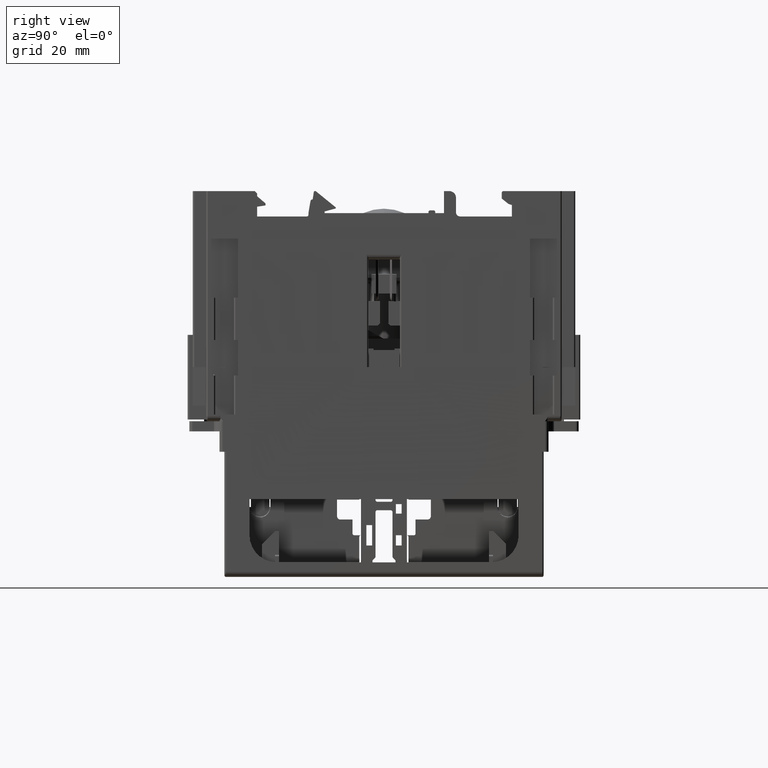
[diagram: clean part render]
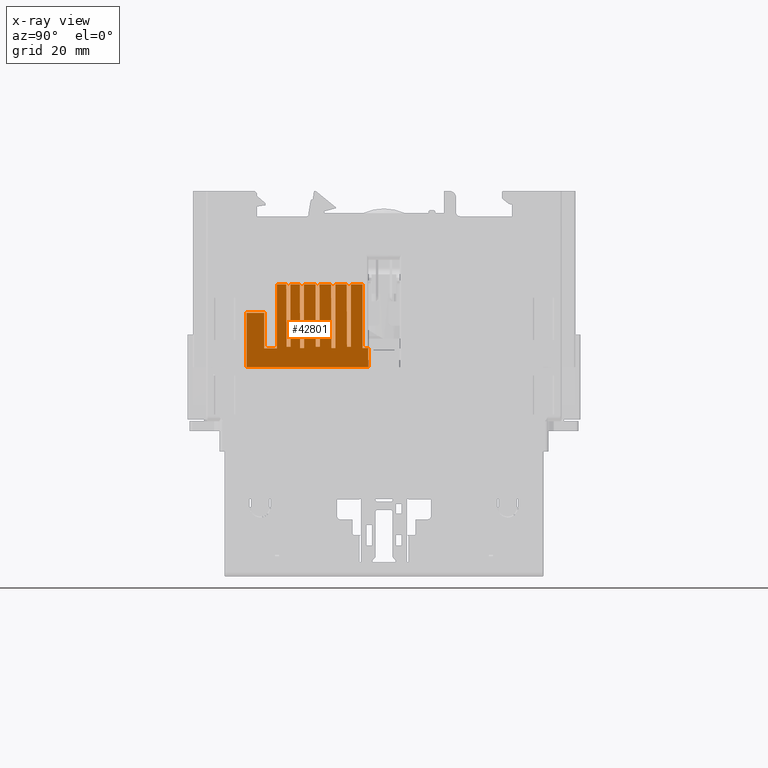
[diagram: x-ray — body ghosted, one internal face saturated and labeled with its STEP entity id]
A machine part, right view, then the same camera in x-ray: the body is ghosted and one INTERNAL B-rep face — a face not visible from any outside direction — is saturated and labeled: STEP entity #42801.
In plain terms, the highlighted planar face has unit normal (1, 0, 0).
Its self-contained STEP definition (entity closure, byte-faithful):
#23143=DIRECTION('',(6.053759617570E-8,1.075964707978E-12,-1.E0));
#23144=VECTOR('',#23143,5.600000032127E0);
#23145=CARTESIAN_POINT('',(2.217255198439E2,4.099300676877E2,1.460960762782E2));
#23146=LINE('',#23145,#23144);
#23882=CARTESIAN_POINT('',(2.217259897887E2,3.829806536404E2,1.648960648971E2));
#23919=DIRECTION('',(5.593291574024E-8,3.735052143635E-3,-9.999930246684E-1));
#23920=VECTOR('',#23919,1.840012847930E1);
#23921=CARTESIAN_POINT('',(2.217259189175E2,3.869119282035E2,1.648960763993E2));
#23922=LINE('',#23921,#23920);
#23923=DIRECTION('',(1.744056726206E-5,-9.999999998479E-1,-4.736951575507E-14));
#23924=VECTOR('',#23923,1.199999999044E0);
#23925=CARTESIAN_POINT('',(2.217259199467E2,3.869806536428E2,1.464960762670E2));
#23926=LINE('',#23925,#23924);
#23927=DIRECTION('',(-5.593291574028E-8,-3.735052147787E-3,9.999930246684E-1));
#23928=VECTOR('',#23927,1.840012847929E1);
#23929=CARTESIAN_POINT('',(2.217259408754E2,3.857806536440E2,1.464960762670E2));
#23930=LINE('',#23929,#23928);
#23931=DIRECTION('',(1.828542755715E-5,-9.999999998240E-1,-4.211296921988E-6));
#23932=VECTOR('',#23931,2.731274564660E0);
#23933=CARTESIAN_POINT('',(2.217259398462E2,3.857119282046E2,1.648960763993E2));
#23934=LINE('',#23933,#23932);
#23935=DIRECTION('',(7.043611689288E-7,5.549124057681E-9,-9.999999999998E-1));
#23936=VECTOR('',#23935,1.889998861889E1);
#23937=CARTESIAN_POINT('',(2.217259897887E2,3.829806536404E2,1.648960648971E2));
#23938=LINE('',#23937,#23936);
#23939=DIRECTION('',(1.016834451892E-5,-9.999999999483E-1,-2.991780072624E-14));
#23940=VECTOR('',#23939,3.799973091669E0);
#23941=CARTESIAN_POINT('',(2.217260031012E2,3.829806537453E2,1.459960762782E2));
#23942=LINE('',#23941,#23940);
#23943=DIRECTION('',(1.241107716913E-6,-1.715144787250E-6,9.999999999978E-1));
#23944=VECTOR('',#23943,1.050000000002E1);
#23945=CARTESIAN_POINT('',(2.217260417406E2,3.791806806538E2,1.459960762782E2));
#23946=LINE('',#23945,#23944);
#23947=DIRECTION('',(1.744056725845E-5,-9.999999998479E-1,-2.730000099677E-14));
#23948=VECTOR('',#23947,5.205441097559E0);
#23949=CARTESIAN_POINT('',(2.217260547722E2,3.791806626448E2,1.564960762782E2));
#23950=LINE('',#23949,#23948);
#23951=DIRECTION('',(1.210751872094E-7,2.142286348317E-12,-1.E0));
#23952=VECTOR('',#23951,1.6E1);
#23953=CARTESIAN_POINT('',(2.217261455581E2,3.739752215480E2,1.564960762782E2));
#23954=LINE('',#23953,#23952);
#23955=DIRECTION('',(-1.744722604498E-5,9.999999998478E-1,-8.935102761296E-10));
#23956=VECTOR('',#23955,3.595484614510E1);
#23957=CARTESIAN_POINT('',(2.217261474953E2,3.739752215480E2,1.404960762782E2));
#23958=LINE('',#23957,#23956);
#23959=DIRECTION('',(1.701684796158E-5,-9.999999998552E-1,0.E0));
#23960=VECTOR('',#23959,1.700000144005E0);
#23961=CARTESIAN_POINT('',(2.217255198439E2,4.099300676877E2,1.460960762782E2));
#23962=LINE('',#23961,#23960);
#23963=DIRECTION('',(-6.053759384446E-8,-1.070349479359E-12,1.E0));
#23964=VECTOR('',#23963,1.880000006052E1);
#23965=CARTESIAN_POINT('',(2.217255487726E2,4.082300675439E2,1.460960762782E2));
#23966=LINE('',#23965,#23964);
#23967=DIRECTION('',(1.729141751913E-5,-9.999999998505E-1,8.720416472653E-9));
#23968=VECTOR('',#23967,3.468853892386E0);
#23969=CARTESIAN_POINT('',(2.217255476345E2,4.082300675439E2,1.648960763387E2));
#23970=LINE('',#23969,#23968);
#23971=DIRECTION('',(5.593291428779E-8,3.735052198779E-3,-9.999930246682E-1));
#23972=VECTOR('',#23971,1.840012844897E1);
#23973=CARTESIAN_POINT('',(2.217256076159E2,4.047612136520E2,1.648960763690E2));
#23974=LINE('',#23973,#23972);
#23975=DIRECTION('',(1.744056724442E-5,-9.999999998479E-1,-2.368475785357E-14));
#23976=VECTOR('',#23975,1.200000000258E0);
#23977=CARTESIAN_POINT('',(2.217256086450E2,4.048299390922E2,1.464960762670E2));
#23978=LINE('',#23977,#23976);
#23979=DIRECTION('',(-5.593291530769E-8,-3.735052147867E-3,9.999930246684E-1));
#23980=VECTOR('',#23979,1.840345490111E1);
#23981=CARTESIAN_POINT('',(2.217256295737E2,4.036299390922E2,1.464960762670E2));
#23982=LINE('',#23981,#23980);
#23983=DIRECTION('',(1.744056725828E-5,-9.999999998479E-1,-3.342261860017E-14));
#23984=VECTOR('',#23983,3.401494032579E0);
#23985=CARTESIAN_POINT('',(2.217256285444E2,4.035612012284E2,1.648994027979E2));
#23986=LINE('',#23985,#23984);
#23987=DIRECTION('',(5.593291335388E-8,3.735052272143E-3,-9.999930246679E-1));
#23988=VECTOR('',#23987,1.880345769127E1);
#23989=CARTESIAN_POINT('',(2.217256878684E2,4.001597071963E2,1.648994027979E2));
#23990=LINE('',#23989,#23988);
#23991=DIRECTION('',(1.744056724325E-5,-9.999999998479E-1,-4.736951570397E-14));
#23992=VECTOR('',#23991,1.200000000339E0);
#23993=CARTESIAN_POINT('',(2.217256889201E2,4.002299390937E2,1.460960762670E2));
#23994=LINE('',#23993,#23992);
#23995=DIRECTION('',(-5.593291528871E-8,-3.735052147788E-3,9.999930246684E-1));
#23996=VECTOR('',#23995,1.880013126945E1);
#23997=CARTESIAN_POINT('',(2.217257098488E2,3.990299390936E2,1.460960762670E2));
#23998=LINE('',#23997,#23996);
#23999=DIRECTION('',(1.744056725507E-5,-9.999999998479E-1,-3.321120219893E-14));
#24000=VECTOR('',#23999,3.423147317602E0);
#24001=CARTESIAN_POINT('',(2.217257087972E2,3.989597196229E2,1.648960763993E2));
#24002=LINE('',#24001,#24000);
#24003=DIRECTION('',(5.593291574027E-8,3.735052143134E-3,-9.999930246684E-1));
#24004=VECTOR('',#24003,1.840012847929E1);
#24005=CARTESIAN_POINT('',(2.217257684989E2,3.955365723058E2,1.648960763993E2));
#24006=LINE('',#24005,#24004);
#24007=DIRECTION('',(1.744056724476E-5,-9.999999998479E-1,-2.368475785404E-14));
#24008=VECTOR('',#24007,1.200000000235E0);
#24009=CARTESIAN_POINT('',(2.217257695280E2,3.956052977451E2,1.464960762670E2));
#24010=LINE('',#24009,#24008);
#24011=DIRECTION('',(-5.593291419561E-8,-3.735052147792E-3,9.999930246684E-1));
#24012=VECTOR('',#24011,1.840012847930E1);
#24013=CARTESIAN_POINT('',(2.217257904567E2,3.944052977451E2,1.464960762670E2));
#24014=LINE('',#24013,#24012);
#24015=DIRECTION('',(1.744056725460E-5,-9.999999998479E-1,-3.318221076016E-14));
#24016=VECTOR('',#24015,3.426138135983E0);
#24017=CARTESIAN_POINT('',(2.217257894275E2,3.943365723057E2,1.648960763993E2));
#24018=LINE('',#24017,#24016);
#24019=DIRECTION('',(5.593291831204E-8,3.735051971090E-3,-9.999930246691E-1));
#24020=VECTOR('',#24019,1.880013126953E1);
#24021=CARTESIAN_POINT('',(2.217258491813E2,3.909104341702E2,1.648960763993E2));
#24022=LINE('',#24021,#24020);
#24023=DIRECTION('',(1.744056725010E-5,-9.999999998479E-1,-2.368475795778E-14));
#24024=VECTOR('',#24023,1.199999994979E0);
#24025=CARTESIAN_POINT('',(2.217258502329E2,3.909806536376E2,1.460960762669E2));
#24026=LINE('',#24025,#24024);
#24027=DIRECTION('',(-5.593291528841E-8,-3.735052147777E-3,9.999930246684E-1));
#24028=VECTOR('',#24027,1.880013126955E1);
#24029=CARTESIAN_POINT('',(2.217258711616E2,3.897806536428E2,1.460960762669E2));
#24030=LINE('',#24029,#24028);
#24031=DIRECTION('',(1.744056725139E-5,-9.999999998479E-1,-3.046808877147E-14));
#24032=VECTOR('',#24031,2.798505969007E0);
#24033=CARTESIAN_POINT('',(2.217258701100E2,3.897104341721E2,1.648960763993E2));
#24034=LINE('',#24033,#24032);
#37571=CARTESIAN_POINT('',(2.217255476345E2,4.082300675439E2,1.648960763387E2));
#37572=VERTEX_POINT('',#37571);
#37573=CARTESIAN_POINT('',(2.217255487726E2,4.082300675439E2,1.460960762782E2));
#37575=VERTEX_POINT('',#37573);
#40003=CARTESIAN_POINT('',(2.217260417406E2,3.791806806538E2,1.459960762782E2));
#40004=VERTEX_POINT('',#40003);
#40007=VERTEX_POINT('',#23882);
#40057=CARTESIAN_POINT('',(2.217259189175E2,3.869119282035E2,1.648960763993E2));
#40058=CARTESIAN_POINT('',(2.217259199467E2,3.869806536428E2,1.464960762670E2));
#40059=VERTEX_POINT('',#40057);
#40060=VERTEX_POINT('',#40058);
#40061=CARTESIAN_POINT('',(2.217259408754E2,3.857806536440E2,1.464960762670E2));
#40062=VERTEX_POINT('',#40061);
#40063=CARTESIAN_POINT('',(2.217259398462E2,3.857119282046E2,1.648960763993E2));
#40064=VERTEX_POINT('',#40063);
#40065=CARTESIAN_POINT('',(2.217260547722E2,3.791806626448E2,1.564960762782E2));
#40066=VERTEX_POINT('',#40065);
#40067=CARTESIAN_POINT('',(2.217261455581E2,3.739752215480E2,1.564960762782E2));
#40068=VERTEX_POINT('',#40067);
#40069=CARTESIAN_POINT('',(2.217261474953E2,3.739752215480E2,1.404960762782E2));
#40070=VERTEX_POINT('',#40069);
#40071=CARTESIAN_POINT('',(2.217255201829E2,4.099300676877E2,1.404960762461E2));
#40072=VERTEX_POINT('',#40071);
#40073=CARTESIAN_POINT('',(2.217255198439E2,4.099300676877E2,1.460960762782E2));
#40074=VERTEX_POINT('',#40073);
#40075=CARTESIAN_POINT('',(2.217256076159E2,4.047612136520E2,1.648960763690E2));
#40076=VERTEX_POINT('',#40075);
#40077=CARTESIAN_POINT('',(2.217256086450E2,4.048299390922E2,1.464960762670E2));
#40078=VERTEX_POINT('',#40077);
#40079=CARTESIAN_POINT('',(2.217256295737E2,4.036299390922E2,1.464960762670E2));
#40080=VERTEX_POINT('',#40079);
#40081=CARTESIAN_POINT('',(2.217256285444E2,4.035612012284E2,1.648994027979E2));
#40082=VERTEX_POINT('',#40081);
#40083=CARTESIAN_POINT('',(2.217256878684E2,4.001597071963E2,1.648994027979E2));
#40084=VERTEX_POINT('',#40083);
#40085=CARTESIAN_POINT('',(2.217256889201E2,4.002299390937E2,1.460960762670E2));
#40086=VERTEX_POINT('',#40085);
#40087=CARTESIAN_POINT('',(2.217257098488E2,3.990299390936E2,1.460960762670E2));
#40088=VERTEX_POINT('',#40087);
#40089=CARTESIAN_POINT('',(2.217257087972E2,3.989597196229E2,1.648960763993E2));
#40090=VERTEX_POINT('',#40089);
#40091=CARTESIAN_POINT('',(2.217257684989E2,3.955365723058E2,1.648960763993E2));
#40092=VERTEX_POINT('',#40091);
#40093=CARTESIAN_POINT('',(2.217257695280E2,3.956052977451E2,1.464960762670E2));
#40094=VERTEX_POINT('',#40093);
#40095=CARTESIAN_POINT('',(2.217257904567E2,3.944052977451E2,1.464960762670E2));
#40096=VERTEX_POINT('',#40095);
#40097=CARTESIAN_POINT('',(2.217257894275E2,3.943365723057E2,1.648960763993E2));
#40098=VERTEX_POINT('',#40097);
#40099=CARTESIAN_POINT('',(2.217258491813E2,3.909104341702E2,1.648960763993E2));
#40100=VERTEX_POINT('',#40099);
#40101=CARTESIAN_POINT('',(2.217258502329E2,3.909806536376E2,1.460960762669E2));
#40102=VERTEX_POINT('',#40101);
#40103=CARTESIAN_POINT('',(2.217258711616E2,3.897806536428E2,1.460960762669E2));
#40104=VERTEX_POINT('',#40103);
#40105=CARTESIAN_POINT('',(2.217258701100E2,3.897104341721E2,1.648960763993E2));
#40106=VERTEX_POINT('',#40105);
#41749=CARTESIAN_POINT('',(2.217260031012E2,3.829806537453E2,1.459960762782E2));
#41750=VERTEX_POINT('',#41749);
#42736=CARTESIAN_POINT('',(2.217258324813E2,3.919526446180E2,1.526994027374E2));
#42737=DIRECTION('',(9.999999998479E-1,1.744056725456E-5,1.210751882587E-7));
#42738=DIRECTION('',(1.744056725456E-5,-9.999999998479E-1,-3.091759724805E-14));
#42739=AXIS2_PLACEMENT_3D('',#42736,#42737,#42738);
#42740=PLANE('',#42739);
#42742=ORIENTED_EDGE('',*,*,#42741,.T.);
#42744=ORIENTED_EDGE('',*,*,#42743,.T.);
#42746=ORIENTED_EDGE('',*,*,#42745,.T.);
#42748=ORIENTED_EDGE('',*,*,#42747,.T.);
#42749=ORIENTED_EDGE('',*,*,#42718,.T.);
#42751=ORIENTED_EDGE('',*,*,#42750,.T.);
#42753=ORIENTED_EDGE('',*,*,#42752,.T.);
#42755=ORIENTED_EDGE('',*,*,#42754,.T.);
#42757=ORIENTED_EDGE('',*,*,#42756,.T.);
#42759=ORIENTED_EDGE('',*,*,#42758,.T.);
#42760=ORIENTED_EDGE('',*,*,#42012,.F.);
#42762=ORIENTED_EDGE('',*,*,#42761,.T.);
#42764=ORIENTED_EDGE('',*,*,#42763,.T.);
#42766=ORIENTED_EDGE('',*,*,#42765,.T.);
#42768=ORIENTED_EDGE('',*,*,#42767,.T.);
#42770=ORIENTED_EDGE('',*,*,#42769,.T.);
#42772=ORIENTED_EDGE('',*,*,#42771,.T.);
#42774=ORIENTED_EDGE('',*,*,#42773,.T.);
#42776=ORIENTED_EDGE('',*,*,#42775,.T.);
#42778=ORIENTED_EDGE('',*,*,#42777,.T.);
#42780=ORIENTED_EDGE('',*,*,#42779,.T.);
#42782=ORIENTED_EDGE('',*,*,#42781,.T.);
#42784=ORIENTED_EDGE('',*,*,#42783,.T.);
#42786=ORIENTED_EDGE('',*,*,#42785,.T.);
#42788=ORIENTED_EDGE('',*,*,#42787,.T.);
#42790=ORIENTED_EDGE('',*,*,#42789,.T.);
#42792=ORIENTED_EDGE('',*,*,#42791,.T.);
#42794=ORIENTED_EDGE('',*,*,#42793,.T.);
#42796=ORIENTED_EDGE('',*,*,#42795,.T.);
#42798=ORIENTED_EDGE('',*,*,#42797,.T.);
#42799=EDGE_LOOP('',(#42742,#42744,#42746,#42748,#42749,#42751,#42753,#42755,
#42757,#42759,#42760,#42762,#42764,#42766,#42768,#42770,#42772,#42774,#42776,
#42778,#42780,#42782,#42784,#42786,#42788,#42790,#42792,#42794,#42796,#42798));
#42800=FACE_OUTER_BOUND('',#42799,.F.);
#42801=ADVANCED_FACE('',(#42800),#42740,.F.);
#42012=EDGE_CURVE('',#40074,#40072,#23146,.T.);
#42718=EDGE_CURVE('',#40007,#41750,#23938,.T.);
#42741=EDGE_CURVE('',#40059,#40060,#23922,.T.);
#42743=EDGE_CURVE('',#40060,#40062,#23926,.T.);
#42745=EDGE_CURVE('',#40062,#40064,#23930,.T.);
#42747=EDGE_CURVE('',#40064,#40007,#23934,.T.);
#42750=EDGE_CURVE('',#41750,#40004,#23942,.T.);
#42752=EDGE_CURVE('',#40004,#40066,#23946,.T.);
#42754=EDGE_CURVE('',#40066,#40068,#23950,.T.);
#42756=EDGE_CURVE('',#40068,#40070,#23954,.T.);
#42758=EDGE_CURVE('',#40070,#40072,#23958,.T.);
#42761=EDGE_CURVE('',#40074,#37575,#23962,.T.);
#42763=EDGE_CURVE('',#37575,#37572,#23966,.T.);
#42765=EDGE_CURVE('',#37572,#40076,#23970,.T.);
#42767=EDGE_CURVE('',#40076,#40078,#23974,.T.);
#42769=EDGE_CURVE('',#40078,#40080,#23978,.T.);
#42771=EDGE_CURVE('',#40080,#40082,#23982,.T.);
#42773=EDGE_CURVE('',#40082,#40084,#23986,.T.);
#42775=EDGE_CURVE('',#40084,#40086,#23990,.T.);
#42777=EDGE_CURVE('',#40086,#40088,#23994,.T.);
#42779=EDGE_CURVE('',#40088,#40090,#23998,.T.);
#42781=EDGE_CURVE('',#40090,#40092,#24002,.T.);
#42783=EDGE_CURVE('',#40092,#40094,#24006,.T.);
#42785=EDGE_CURVE('',#40094,#40096,#24010,.T.);
#42787=EDGE_CURVE('',#40096,#40098,#24014,.T.);
#42789=EDGE_CURVE('',#40098,#40100,#24018,.T.);
#42791=EDGE_CURVE('',#40100,#40102,#24022,.T.);
#42793=EDGE_CURVE('',#40102,#40104,#24026,.T.);
#42795=EDGE_CURVE('',#40104,#40106,#24030,.T.);
#42797=EDGE_CURVE('',#40106,#40059,#24034,.T.);